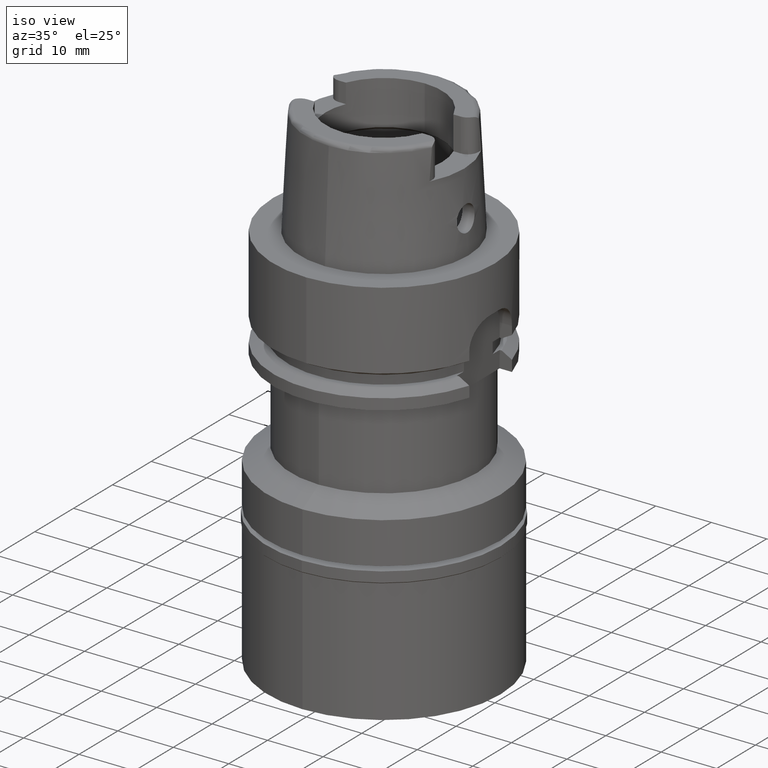
[diagram: clean part render]
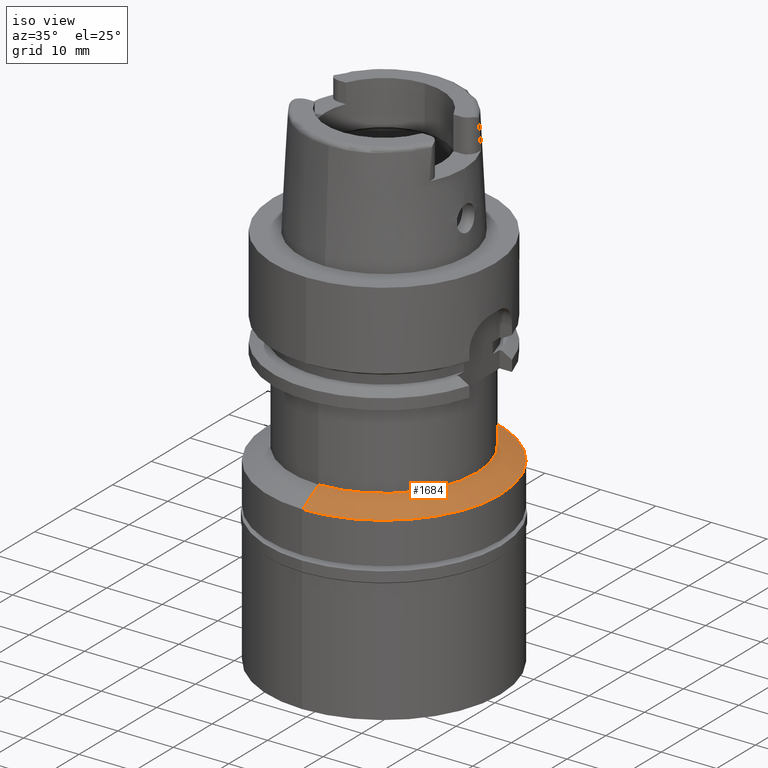
[diagram: same view with one face highlighted and labeled with its STEP entity id]
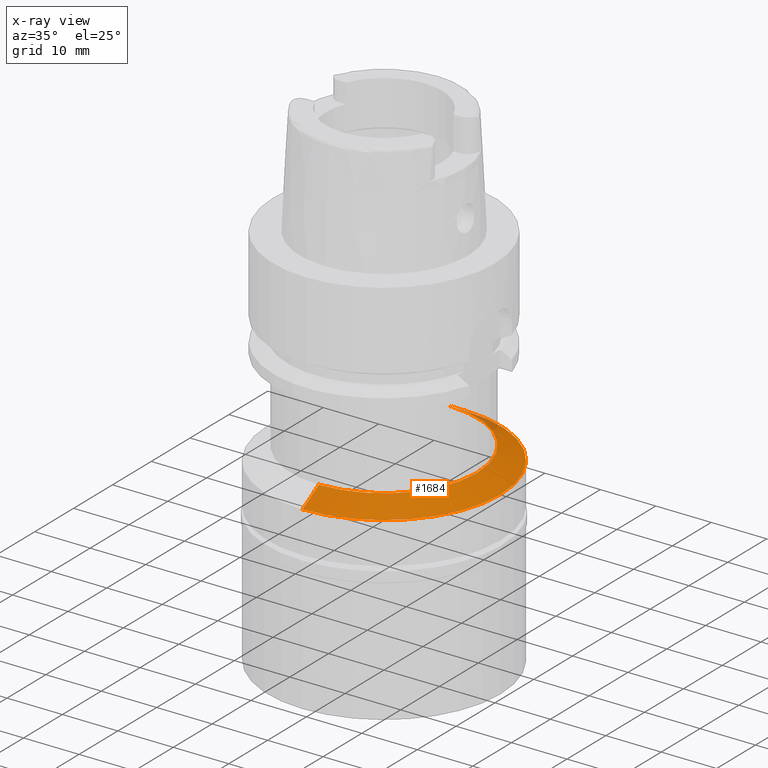
[diagram: x-ray of the same camera — body ghosted, the highlighted face saturated]
A machine part, iso view. The second image highlights one B-rep face of the part: STEP entity #1684.
The next image is the same camera in x-ray: the body ghosted, the highlighted face saturated — about 2% of this face is hidden behind the body in this view.
In plain terms, the highlighted conical surface has half-angle 60 deg.
Its self-contained STEP definition (entity closure, byte-faithful):
#17 = AXIS2_PLACEMENT_3D ( 'NONE', #1442, #1838, #4831 ) ;
#61 = ORIENTED_EDGE ( 'NONE', *, *, #4246, .T. ) ;
#202 = DIRECTION ( 'NONE',  ( 0.0000000000000000000, -0.8660254037842740615, -0.5000000000002851053 ) ) ;
#223 = CONICAL_SURFACE ( 'NONE', #3848, 18.89999999999999858, 1.047197551196400456 ) ;
#397 = VERTEX_POINT ( 'NONE', #3354 ) ;
#642 = CIRCLE ( 'NONE', #3471, 21.00000000000000000 ) ;
#983 = ORIENTED_EDGE ( 'NONE', *, *, #2677, .F. ) ;
#1070 = DIRECTION ( 'NONE',  ( 0.0000000000000000000, 0.0000000000000000000, -1.000000000000000000 ) ) ;
#1208 = EDGE_CURVE ( 'NONE', #2234, #4109, #3149, .T. ) ;
#1270 = VECTOR ( 'NONE', #202, 1000.000000000000114 ) ;
#1442 = CARTESIAN_POINT ( 'NONE',  ( 0.0000000000000000000, 0.0000000000000000000, -35.00000000000000000 ) ) ;
#1533 = FACE_OUTER_BOUND ( 'NONE', #5363, .T. ) ;
#1684 = ADVANCED_FACE ( 'NONE', ( #1533 ), #223, .T. ) ;
#1692 = CIRCLE ( 'NONE', #17, 16.80000000000000071 ) ;
#1838 = DIRECTION ( 'NONE',  ( 0.0000000000000000000, 0.0000000000000000000, 1.000000000000000000 ) ) ;
#1915 = CARTESIAN_POINT ( 'NONE',  ( 0.0000000000000000000, 16.80000000000000071, -35.00000000000000000 ) ) ;
#2025 = CARTESIAN_POINT ( 'NONE',  ( 0.0000000000000000000, 16.80000000000000071, -35.00000000000000000 ) ) ;
#2234 = VERTEX_POINT ( 'NONE', #2025 ) ;
#2317 = ORIENTED_EDGE ( 'NONE', *, *, #1208, .F. ) ;
#2397 = DIRECTION ( 'NONE',  ( 0.0000000000000000000, -1.000000000000000000, 0.0000000000000000000 ) ) ;
#2465 = DIRECTION ( 'NONE',  ( 0.0000000000000000000, 0.0000000000000000000, -1.000000000000000000 ) ) ;
#2624 = EDGE_CURVE ( 'NONE', #4109, #397, #642, .T. ) ;
#2677 = EDGE_CURVE ( 'NONE', #4634, #2234, #1692, .T. ) ;
#2883 = CARTESIAN_POINT ( 'NONE',  ( 0.0000000000000000000, 0.0000000000000000000, -36.21243556530000518 ) ) ;
#3149 = LINE ( 'NONE', #1915, #3936 ) ;
#3354 = CARTESIAN_POINT ( 'NONE',  ( 0.0000000000000000000, -21.00000000000000000, -37.42487113060000326 ) ) ;
#3471 = AXIS2_PLACEMENT_3D ( 'NONE', #5289, #1070, #3617 ) ;
#3617 = DIRECTION ( 'NONE',  ( 0.0000000000000000000, 1.000000000000000000, 0.0000000000000000000 ) ) ;
#3848 = AXIS2_PLACEMENT_3D ( 'NONE', #2883, #2465, #2397 ) ;
#3861 = CARTESIAN_POINT ( 'NONE',  ( 0.0000000000000000000, 21.00000000000000000, -37.42487113060000326 ) ) ;
#3936 = VECTOR ( 'NONE', #4365, 1000.000000000000114 ) ;
#3994 = CARTESIAN_POINT ( 'NONE',  ( 0.0000000000000000000, -16.80000000000000071, -35.00000000000000000 ) ) ;
#4016 = CARTESIAN_POINT ( 'NONE',  ( 0.0000000000000000000, -16.80000000000000071, -35.00000000000000000 ) ) ;
#4109 = VERTEX_POINT ( 'NONE', #3861 ) ;
#4246 = EDGE_CURVE ( 'NONE', #4634, #397, #4815, .T. ) ;
#4365 = DIRECTION ( 'NONE',  ( 0.0000000000000000000, 0.8660254037842740615, -0.5000000000002851053 ) ) ;
#4634 = VERTEX_POINT ( 'NONE', #4016 ) ;
#4815 = LINE ( 'NONE', #3994, #1270 ) ;
#4831 = DIRECTION ( 'NONE',  ( 0.0000000000000000000, -1.000000000000000000, 0.0000000000000000000 ) ) ;
#5231 = ORIENTED_EDGE ( 'NONE', *, *, #2624, .F. ) ;
#5289 = CARTESIAN_POINT ( 'NONE',  ( 0.0000000000000000000, 0.0000000000000000000, -37.42487113060000326 ) ) ;
#5363 = EDGE_LOOP ( 'NONE', ( #983, #61, #5231, #2317 ) ) ;